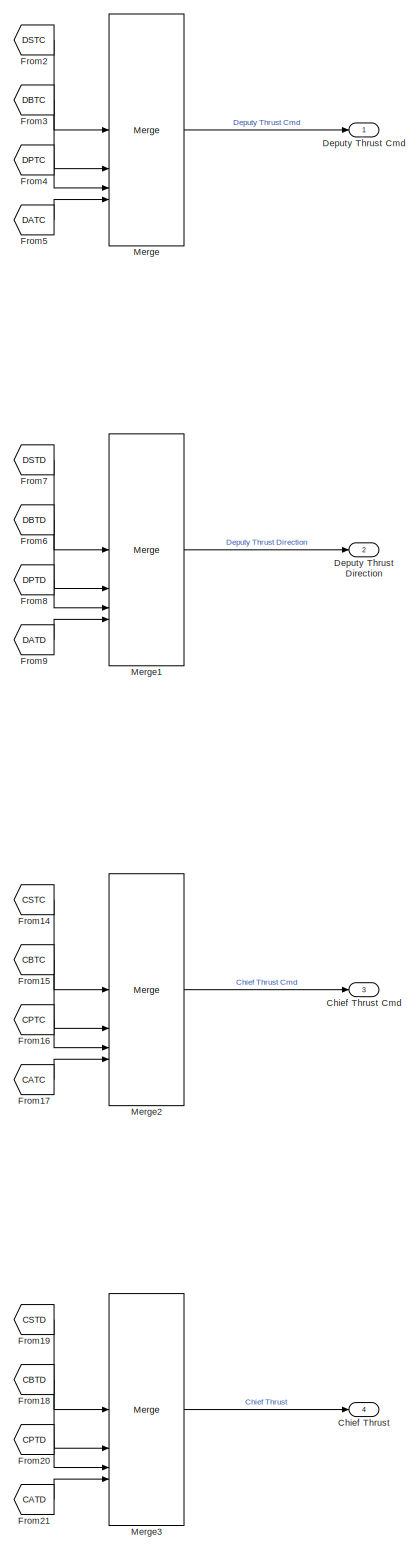
[diagram: root canvas - part 1/4, right side, full height]
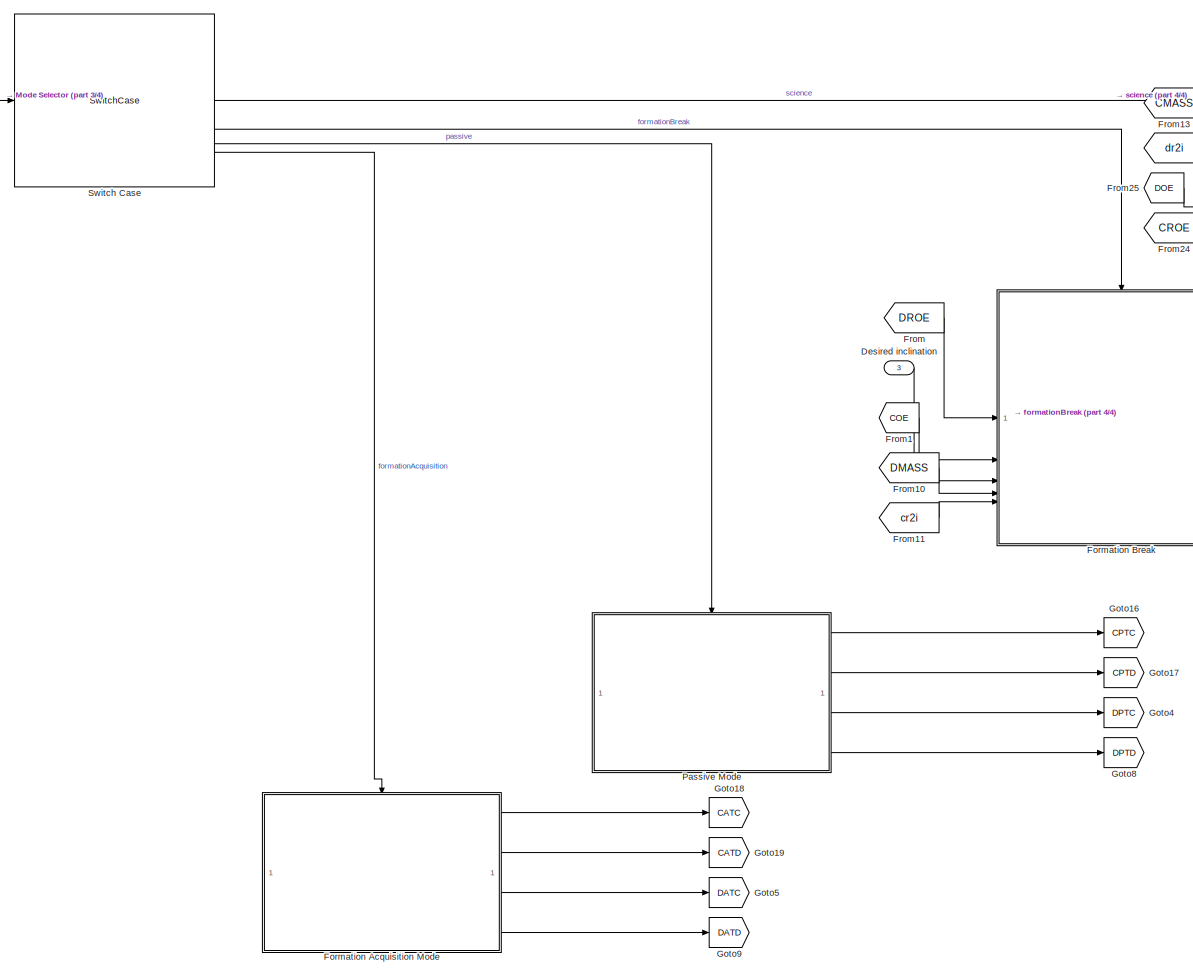
[diagram: root canvas - part 2/4, central region]
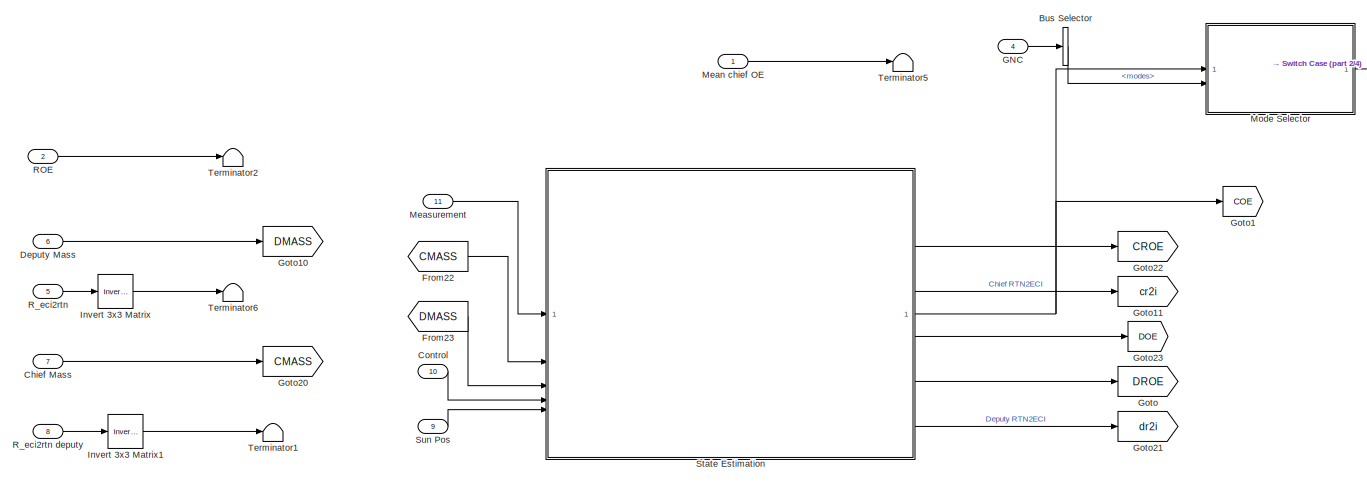
[diagram: root canvas - part 3/4, middle left region]
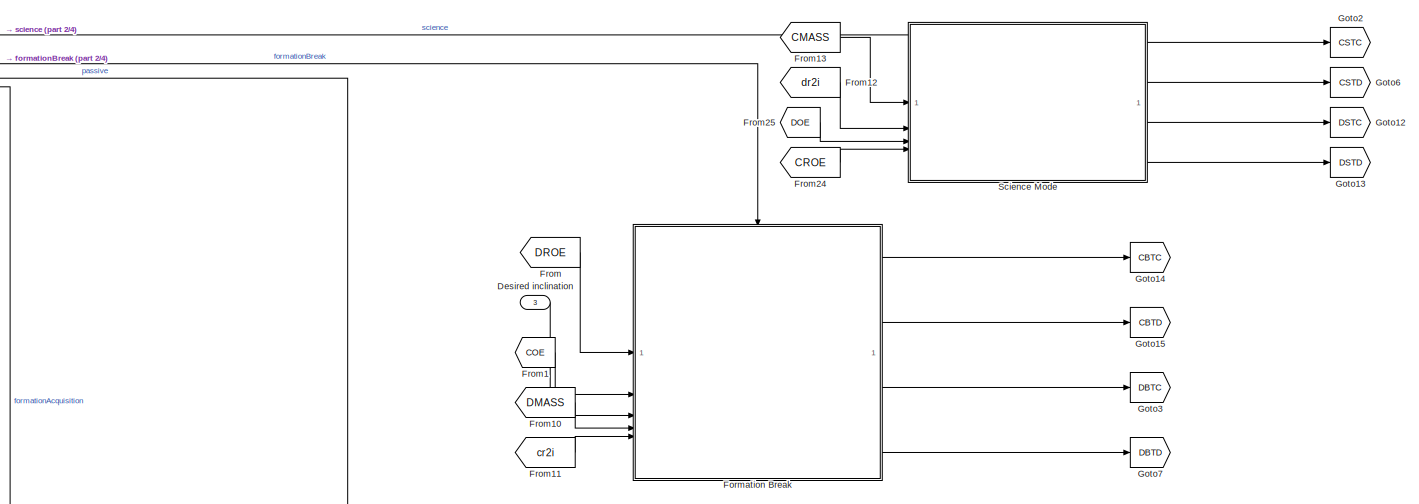
[diagram: root canvas - part 4/4, middle right region]
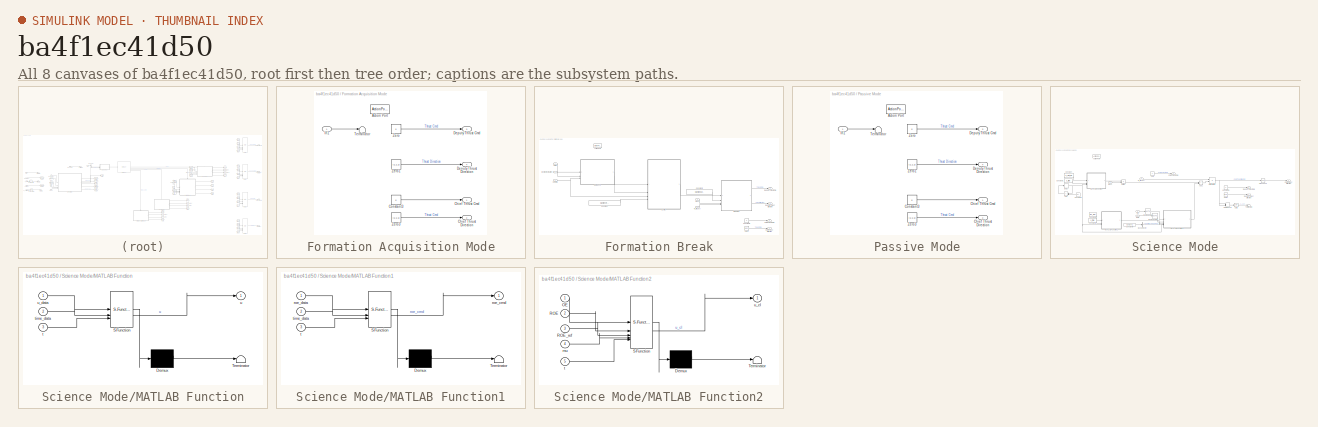
[diagram: thumbnail index - all 8 canvases of the model, root first then tree order]
MODEL slx_ba4f1ec41d50
KIND model
CONFIG AbsTol = auto
CONFIG EnableMultiTasking = off
CONFIG FixedStep = dt
CONFIG MaxStep = auto
CONFIG MinStep = auto
CONFIG RelTol = 1e-3
CONFIG SampleTimeConstraint = Unconstrained
CONFIG SolverName = ode4
CONFIG StartTime = 0.0
CONFIG StopTime = 10.0
BLOCK [BusSelector] Bus Selector
  OutputSignals = modes
BLOCK [Inport] Chief Mass
  Port = 7
BLOCK [Outport] Chief Thrust
  Port = 4
BLOCK [Outport] Chief Thrust Cmd
  Port = 3
BLOCK [Inport] Control
  Port = 10
BLOCK [Inport] Deputy Mass
  Port = 6
BLOCK [Outport] Deputy Thrust Cmd
BLOCK [Outport] Deputy Thrust Direction
  Port = 2
BLOCK [Inport] Desired inclination
  Port = 3
  PortDimensions = 2
BLOCK [SubSystem] Formation Acquisition Mode
  TreatAsAtomicUnit = on
BLOCK [ActionPort] Formation Acquisition Mode/Action Port
  ActionPortLabel = case [ 4 ]:
BLOCK [Outport] Formation Acquisition Mode/Chief Thrust Cmd
BLOCK [Outport] Formation Acquisition Mode/Chief Thrust Direction
  Port = 2
BLOCK [Constant] Formation Acquisition Mode/Constant3
  Value = 0
BLOCK [Outport] Formation Acquisition Mode/Deputy Thrust Cmd
  Port = 3
BLOCK [Outport] Formation Acquisition Mode/Deputy Thrust Direction
  Port = 4
BLOCK [Inport] Formation Acquisition Mode/In1
BLOCK [Terminator] Formation Acquisition Mode/Terminator
BLOCK [Constant] Formation Acquisition Mode/Zero
  OutDataTypeStr = Inherit: Inherit via back propagation
  Value = 0
BLOCK [Constant] Formation Acquisition Mode/Zero1
  OutDataTypeStr = Inherit: Inherit via back propagation
  Value = [1;1;1]
BLOCK [Constant] Formation Acquisition Mode/Zero3
  OutDataTypeStr = Inherit: Inherit via back propagation
  Value = [1;1;1]
BLOCK [SubSystem] Formation Break
  TreatAsAtomicUnit = on
BLOCK [ActionPort] Formation Break/Action Port
  ActionPortLabel = case [ 2 ]:
BLOCK [Outport] Formation Break/Chief Thrust Cmd
BLOCK [Outport] Formation Break/Chief Thrust Direction
  Port = 2
BLOCK [Inport] Formation Break/ChiefOE
  Port = 3
BLOCK [Constant] Formation Break/Constant
  OutDataTypeStr = Bus: earthProperties
  Value = plant.environment.earthProperties
BLOCK [Constant] Formation Break/Constant1
  OutDataTypeStr = Bus: thruster
  Value = plant.deputy.properties.actuators.thruster
BLOCK [Constant] Formation Break/Constant3
  Value = 0
BLOCK [ModelReference] Formation Break/Control
  ModelNameDialog = control.slx
  ModelReferenceVersion = 1.14
BLOCK [Outport] Formation Break/Deputy Thrust Cmd
  Port = 3
BLOCK [Outport] Formation Break/Deputy Thrust Direction
  Port = 4
BLOCK [Inport] Formation Break/Desired inclination
  Port = 2
BLOCK [ModelReference] Formation Break/Guidance
  ModelNameDialog = guidance_formationBreak
  ModelReferenceVersion = 1.56
BLOCK [ModelReference] Formation Break/Mapping
  ModelNameDialog = mapping.slx
  ModelReferenceVersion = 1.29
BLOCK [Inport] Formation Break/Mass
  Port = 4
BLOCK [Inport] Formation Break/ROE
BLOCK [Inport] Formation Break/R_rtn2eci
  Port = 5
BLOCK [Constant] Formation Break/Zero1
  OutDataTypeStr = Inherit: Inherit via back propagation
  Value = [1;1;1]
BLOCK [From] From
  GotoTag = DROE
BLOCK [From] From1
  GotoTag = COE
BLOCK [From] From10
  GotoTag = DMASS
BLOCK [From] From11
  GotoTag = cr2i
BLOCK [From] From12
  GotoTag = dr2i
BLOCK [From] From13
  GotoTag = CMASS
BLOCK [From] From14
  GotoTag = CSTC
BLOCK [From] From15
  GotoTag = CBTC
BLOCK [From] From16
  GotoTag = CPTC
BLOCK [From] From17
  GotoTag = CATC
BLOCK [From] From18
  GotoTag = CBTD
BLOCK [From] From19
  GotoTag = CSTD
BLOCK [From] From2
  GotoTag = DSTC
BLOCK [From] From20
  GotoTag = CPTD
BLOCK [From] From21
  GotoTag = CATD
BLOCK [From] From22
  GotoTag = CMASS
BLOCK [From] From23
  GotoTag = DMASS
BLOCK [From] From24
  GotoTag = CROE
BLOCK [From] From25
  GotoTag = DOE
BLOCK [From] From3
  GotoTag = DBTC
BLOCK [From] From4
  GotoTag = DPTC
BLOCK [From] From5
  GotoTag = DATC
BLOCK [From] From6
  GotoTag = DBTD
BLOCK [From] From7
  GotoTag = DSTD
BLOCK [From] From8
  GotoTag = DPTD
BLOCK [From] From9
  GotoTag = DATD
BLOCK [Inport] GNC
  OutDataTypeStr = Bus: gncBus
  Port = 4
BLOCK [Goto] Goto
  GotoTag = DROE
BLOCK [Goto] Goto1
  GotoTag = COE
BLOCK [Goto] Goto10
  GotoTag = DMASS
BLOCK [Goto] Goto11
  GotoTag = cr2i
BLOCK [Goto] Goto12
  GotoTag = DSTC
BLOCK [Goto] Goto13
  GotoTag = DSTD
BLOCK [Goto] Goto14
  GotoTag = CBTC
BLOCK [Goto] Goto15
  GotoTag = CBTD
BLOCK [Goto] Goto16
  GotoTag = CPTC
BLOCK [Goto] Goto17
  GotoTag = CPTD
BLOCK [Goto] Goto18
  GotoTag = CATC
BLOCK [Goto] Goto19
  GotoTag = CATD
BLOCK [Goto] Goto2
  GotoTag = CSTC
BLOCK [Goto] Goto20
  GotoTag = CMASS
BLOCK [Goto] Goto21
  GotoTag = dr2i
BLOCK [Goto] Goto22
  GotoTag = CROE
BLOCK [Goto] Goto23
  GotoTag = DOE
BLOCK [Goto] Goto3
  GotoTag = DBTC
BLOCK [Goto] Goto4
  GotoTag = DPTC
BLOCK [Goto] Goto5
  GotoTag = DATC
BLOCK [Goto] Goto6
  GotoTag = CSTD
BLOCK [Goto] Goto7
  GotoTag = DBTD
BLOCK [Goto] Goto8
  GotoTag = DPTD
BLOCK [Goto] Goto9
  GotoTag = DATD
BLOCK [Reference] Invert 3x3 Matrix  REF=aerolibutil/Invert 
3x3 Matrix
  SourceBlock = aerolibutil/Invert \n3x3 Matrix
  SourceType = Invert 3x3 Matrix
BLOCK [Reference] Invert 3x3 Matrix1  REF=aerolibutil/Invert 
3x3 Matrix
  SourceBlock = aerolibutil/Invert \n3x3 Matrix
  SourceType = Invert 3x3 Matrix
BLOCK [Inport] Mean chief OE
  OutDataTypeStr = Bus: meanOrbitElements
BLOCK [Inport] Measurement
  Port = 11
BLOCK [Merge] Merge
  InitialOutput = 0
  Inputs = 4
BLOCK [Merge] Merge1
  InitialOutput = [1,1,1]
  Inputs = 4
BLOCK [Merge] Merge2
  InitialOutput = 0
  Inputs = 4
BLOCK [Merge] Merge3
  InitialOutput = [1,1,1]
  Inputs = 4
BLOCK [ModelReference] Mode Selector
  ModelNameDialog = modeSelector.slx
  ModelReferenceVersion = 1.18
  PortSchema = {"entries":[{"content":{"sides":[{"content":{"connectorIds":["In2","In1"]},"type":"ConnectorPlacement.EquallySpacedRectSide","uuid":"8a45dd05-9625-4267-a143-38565687985f"},{"content":{"connectorIds":["Out1"],"side":"RIGHT"},"type":"ConnectorPlacement.EquallySpacedRectSide","uuid":"c16609dd-c717-4d96-a97d-40d34aa61c5b"},{"content":{"side":"TOP"},"type":"ConnectorPlacement.EquallySpacedRectSide","uu...<+228ch>
BLOCK [SubSystem] Passive Mode
  TreatAsAtomicUnit = on
BLOCK [ActionPort] Passive Mode/Action Port
  ActionPortLabel = case [ 3 ]:
BLOCK [Outport] Passive Mode/Chief Thrust Cmd
BLOCK [Outport] Passive Mode/Chief Thrust Direction
  Port = 2
BLOCK [Constant] Passive Mode/Constant3
  Value = 0
BLOCK [Outport] Passive Mode/Deputy Thrust Cmd
  Port = 3
BLOCK [Outport] Passive Mode/Deputy Thrust Direction
  Port = 4
BLOCK [Inport] Passive Mode/In1
BLOCK [Terminator] Passive Mode/Terminator
BLOCK [Constant] Passive Mode/Zero
  OutDataTypeStr = Inherit: Inherit via back propagation
  Value = 0
BLOCK [Constant] Passive Mode/Zero1
  OutDataTypeStr = Inherit: Inherit via back propagation
  Value = [1;1;1]
BLOCK [Constant] Passive Mode/Zero3
  OutDataTypeStr = Inherit: Inherit via back propagation
  Value = [1;1;1]
BLOCK [Inport] ROE
  OutDataTypeStr = Bus: eccentricSingularROE
  Port = 2
BLOCK [Inport] R_eci2rtn
  Port = 5
  PortDimensions = [3,3]
BLOCK [Inport] R_eci2rtn deputy
  Port = 8
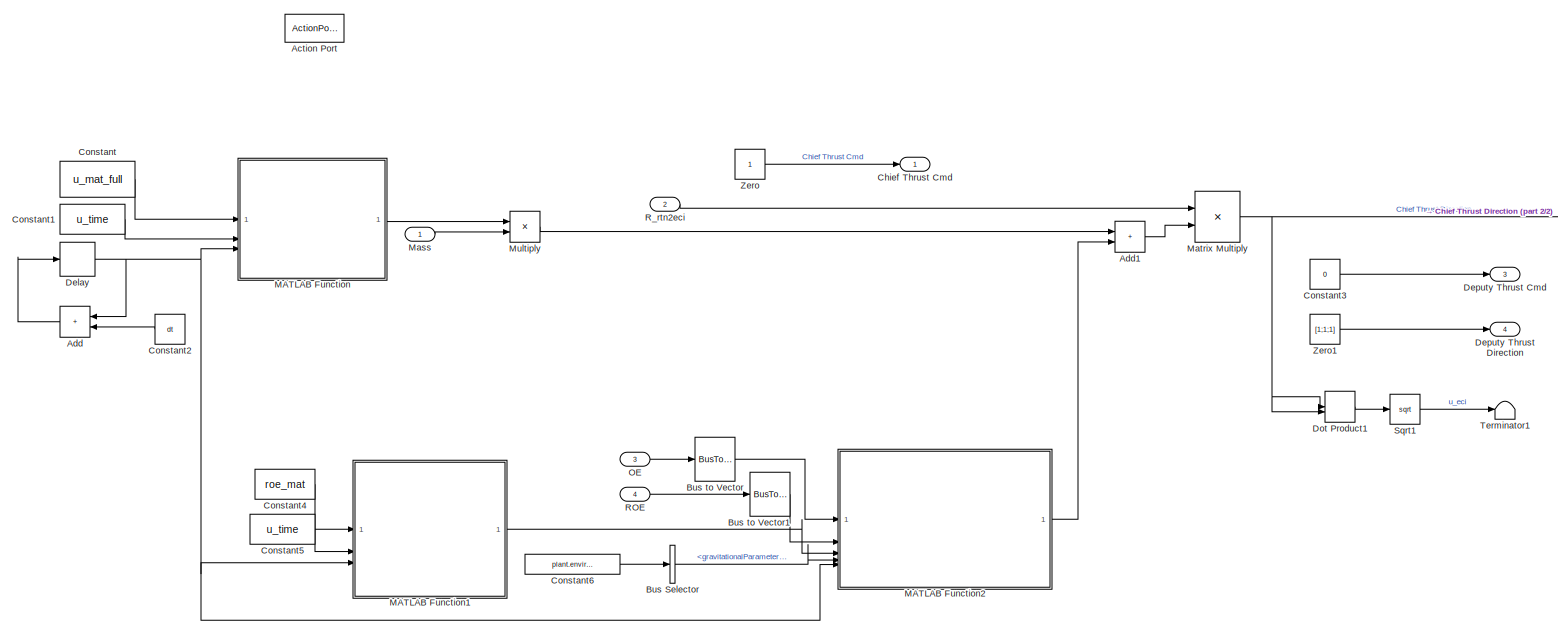
[diagram: Science Mode - part 1/2, most of the canvas]
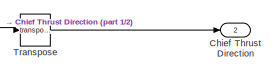
[diagram: Science Mode - part 2/2, middle right region]
BLOCK [SubSystem] Science Mode
  TreatAsAtomicUnit = on
BLOCK [ActionPort] Science Mode/Action Port
  ActionPortLabel = case [ 1 ]:
BLOCK [Sum] Science Mode/Add
  IconShape = rectangular
BLOCK [Sum] Science Mode/Add1
  IconShape = rectangular
BLOCK [BusSelector] Science Mode/Bus Selector
  OutputSignals = earthProperties.gravitationalParameter_m3_s2
BLOCK [BusToVector] Science Mode/Bus to Vector
BLOCK [BusToVector] Science Mode/Bus to Vector1
BLOCK [Outport] Science Mode/Chief Thrust Cmd
BLOCK [Outport] Science Mode/Chief Thrust Direction
  Port = 2
BLOCK [Constant] Science Mode/Constant
  Value = u_mat_full
BLOCK [Constant] Science Mode/Constant1
  Value = u_time
BLOCK [Constant] Science Mode/Constant2
  Value = dt
BLOCK [Constant] Science Mode/Constant3
  Value = 0
BLOCK [Constant] Science Mode/Constant4
  Value = roe_mat
BLOCK [Constant] Science Mode/Constant5
  Value = u_time
BLOCK [Constant] Science Mode/Constant6
  OutDataTypeStr = Bus: environment
  Value = plant.environment
BLOCK [Delay] Science Mode/Delay
  DelayLength = 1
  InputPortMap = u0
BLOCK [Outport] Science Mode/Deputy Thrust Cmd
  Port = 3
BLOCK [Outport] Science Mode/Deputy Thrust Direction
  Port = 4
BLOCK [DotProduct] Science Mode/Dot Product1
  OutDataTypeStr = Inherit: Inherit via internal rule
BLOCK [SubSystem] Science Mode/MATLAB Function
  ErrorFcn = Stateflow.Translate.translate
  LibrarySourceBlock = simulink/User-Defined\nFunctions/MATLAB Function
  PermitHierarchicalResolution = ExplicitOnly
  SFBlockType = MATLAB Function
  TreatAsAtomicUnit = on
BLOCK [Demux] Science Mode/MATLAB Function/ Demux 
  Outputs = 1
BLOCK [S-Function] Science Mode/MATLAB Function/ SFunction 
  EnableBusSupport = on
  FunctionName = sf_sfun
  PortCounts = [3 2]
  SFcnIsStateOwnerBlock = off
  SFunctionDeploymentMode = off
  Tag = Stateflow S-Function 2
BLOCK [Terminator] Science Mode/MATLAB Function/ Terminator 
BLOCK [Inport] Science Mode/MATLAB Function/t
  Port = 3
BLOCK [Inport] Science Mode/MATLAB Function/time_data
  Port = 2
BLOCK [Outport] Science Mode/MATLAB Function/u
BLOCK [Inport] Science Mode/MATLAB Function/u_data
BLOCK [SubSystem] Science Mode/MATLAB Function1
  ErrorFcn = Stateflow.Translate.translate
  LibrarySourceBlock = simulink/User-Defined\nFunctions/MATLAB Function
  PermitHierarchicalResolution = ExplicitOnly
  SFBlockType = MATLAB Function
  TreatAsAtomicUnit = on
BLOCK [Demux] Science Mode/MATLAB Function1/ Demux 
  Outputs = 1
BLOCK [S-Function] Science Mode/MATLAB Function1/ SFunction 
  EnableBusSupport = on
  FunctionName = sf_sfun
  PortCounts = [3 2]
  SFcnIsStateOwnerBlock = off
  SFunctionDeploymentMode = off
  Tag = Stateflow S-Function 1
BLOCK [Terminator] Science Mode/MATLAB Function1/ Terminator 
BLOCK [Outport] Science Mode/MATLAB Function1/roe_cmd
BLOCK [Inport] Science Mode/MATLAB Function1/roe_data
BLOCK [Inport] Science Mode/MATLAB Function1/t
  Port = 3
BLOCK [Inport] Science Mode/MATLAB Function1/time_data
  Port = 2
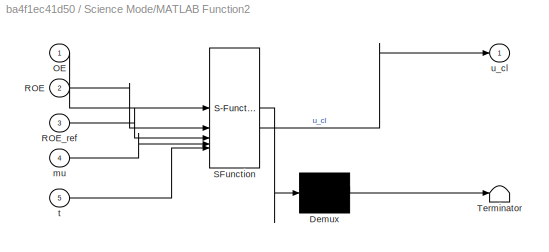
BLOCK [SubSystem] Science Mode/MATLAB Function2
  ErrorFcn = Stateflow.Translate.translate
  LibrarySourceBlock = simulink/User-Defined\nFunctions/MATLAB Function
  PermitHierarchicalResolution = ExplicitOnly
  SFBlockType = MATLAB Function
  TreatAsAtomicUnit = on
BLOCK [Demux] Science Mode/MATLAB Function2/ Demux 
  Outputs = 1
BLOCK [S-Function] Science Mode/MATLAB Function2/ SFunction 
  EnableBusSupport = on
  FunctionName = sf_sfun
  PortCounts = [5 2]
  SFcnIsStateOwnerBlock = off
  SFunctionDeploymentMode = off
  Tag = Stateflow S-Function 3
BLOCK [Terminator] Science Mode/MATLAB Function2/ Terminator 
BLOCK [Inport] Science Mode/MATLAB Function2/OE
BLOCK [Inport] Science Mode/MATLAB Function2/ROE
  Port = 2
BLOCK [Inport] Science Mode/MATLAB Function2/ROE_ref
  Port = 3
BLOCK [Inport] Science Mode/MATLAB Function2/mu
  Port = 4
BLOCK [Inport] Science Mode/MATLAB Function2/t
  Port = 5
BLOCK [Outport] Science Mode/MATLAB Function2/u_cl
BLOCK [Inport] Science Mode/Mass
BLOCK [Product] Science Mode/Matrix Multiply
  Multiplication = Matrix(*)
BLOCK [Product] Science Mode/Multiply
  Inputs = **
BLOCK [Inport] Science Mode/OE
  OutDataTypeStr = Bus: osculatingOrbitElements
  Port = 3
BLOCK [Inport] Science Mode/ROE
  OutDataTypeStr = Bus: eccentricSingularROE
  Port = 4
BLOCK [Inport] Science Mode/R_rtn2eci
  Port = 2
BLOCK [Sqrt] Science Mode/Sqrt1
BLOCK [Terminator] Science Mode/Terminator1
BLOCK [Math] Science Mode/Transpose
  Operator = transpose
BLOCK [Constant] Science Mode/Zero
  OutDataTypeStr = Inherit: Inherit via back propagation
BLOCK [Constant] Science Mode/Zero1
  OutDataTypeStr = Inherit: Inherit via back propagation
  Value = [1;1;1]
BLOCK [ModelReference] State Estimation
  ModelNameDialog = estimation.slx
  ModelReferenceVersion = 1.37
BLOCK [Inport] Sun Pos
  Port = 9
BLOCK [SwitchCase] Switch Case
  CaseConditions = {1,2,3,4}
  ShowDefaultCase = off
BLOCK [Terminator] Terminator1
BLOCK [Terminator] Terminator2
BLOCK [Terminator] Terminator5
BLOCK [Terminator] Terminator6
LINE Bus Selector:1 -> Mode Selector:2
LINE Chief Mass:1 -> Goto20:1
LINE Control:1 -> State Estimation:4
LINE Deputy Mass:1 -> Goto10:1
LINE Desired inclination:1 -> Formation Break:2
LINE Formation Acquisition Mode/Constant3:1 -> Formation Acquisition Mode/Chief Thrust Cmd:1
LINE Formation Acquisition Mode/In1:1 -> Formation Acquisition Mode/Terminator:1
LINE Formation Acquisition Mode/Zero1:1 -> Formation Acquisition Mode/Deputy Thrust Direction:1
LINE Formation Acquisition Mode/Zero3:1 -> Formation Acquisition Mode/Chief Thrust Direction:1
LINE Formation Acquisition Mode/Zero:1 -> Formation Acquisition Mode/Deputy Thrust Cmd:1
LINE Formation Acquisition Mode:1 -> Goto18:1
LINE Formation Acquisition Mode:2 -> Goto19:1
LINE Formation Acquisition Mode:3 -> Goto5:1
LINE Formation Acquisition Mode:4 -> Goto9:1
NET Formation Break/ChiefOE:1 -> Formation Break/Control:3, Formation Break/Guidance:3
LINE Formation Break/Constant1:1 -> Formation Break/Mapping:2
LINE Formation Break/Constant3:1 -> Formation Break/Chief Thrust Cmd:1
LINE Formation Break/Constant:1 -> Formation Break/Control:4
LINE Formation Break/Control:1 -> Formation Break/Mapping:1
LINE Formation Break/Desired inclination:1 -> Formation Break/Guidance:2
LINE Formation Break/Guidance:1 -> Formation Break/Control:1
LINE Formation Break/Guidance:2 -> Formation Break/Control:2
LINE Formation Break/Mapping:1 -> Formation Break/Deputy Thrust Cmd:1
LINE Formation Break/Mapping:2 -> Formation Break/Deputy Thrust Direction:1
LINE Formation Break/Mass:1 -> Formation Break/Mapping:3
LINE Formation Break/ROE:1 -> Formation Break/Guidance:1
LINE Formation Break/R_rtn2eci:1 -> Formation Break/Mapping:4
LINE Formation Break/Zero1:1 -> Formation Break/Chief Thrust Direction:1
LINE Formation Break:1 -> Goto14:1
LINE Formation Break:2 -> Goto15:1
LINE Formation Break:3 -> Goto3:1
LINE Formation Break:4 -> Goto7:1
LINE From10:1 -> Formation Break:4
LINE From11:1 -> Formation Break:5
LINE From12:1 -> Science Mode:2
LINE From13:1 -> Science Mode:1
LINE From14:1 -> Merge2:1
LINE From15:1 -> Merge2:2
LINE From16:1 -> Merge2:3
LINE From17:1 -> Merge2:4
LINE From18:1 -> Merge3:2
LINE From19:1 -> Merge3:1
LINE From1:1 -> Formation Break:3
LINE From20:1 -> Merge3:3
LINE From21:1 -> Merge3:4
LINE From22:1 -> State Estimation:2
LINE From23:1 -> State Estimation:3
LINE From24:1 -> Science Mode:4
LINE From25:1 -> Science Mode:3
LINE From2:1 -> Merge:1
LINE From3:1 -> Merge:2
LINE From4:1 -> Merge:3
LINE From5:1 -> Merge:4
LINE From6:1 -> Merge1:2
LINE From7:1 -> Merge1:1
LINE From8:1 -> Merge1:3
LINE From9:1 -> Merge1:4
LINE From:1 -> Formation Break:1
LINE GNC:1 -> Bus Selector:1
LINE Invert 3x3 Matrix1:1 -> Terminator1:1
LINE Invert 3x3 Matrix:1 -> Terminator6:1
LINE Mean chief OE:1 -> Terminator5:1
LINE Measurement:1 -> State Estimation:1
LINE Merge1:1 -> Deputy Thrust Direction:1
LINE Merge2:1 -> Chief Thrust Cmd:1
LINE Merge3:1 -> Chief Thrust:1
LINE Merge:1 -> Deputy Thrust Cmd:1
LINE Mode Selector:1 -> Switch Case:1
LINE Passive Mode/Constant3:1 -> Passive Mode/Chief Thrust Cmd:1
LINE Passive Mode/In1:1 -> Passive Mode/Terminator:1
LINE Passive Mode/Zero1:1 -> Passive Mode/Deputy Thrust Direction:1
LINE Passive Mode/Zero3:1 -> Passive Mode/Chief Thrust Direction:1
LINE Passive Mode/Zero:1 -> Passive Mode/Deputy Thrust Cmd:1
LINE Passive Mode:1 -> Goto16:1
LINE Passive Mode:2 -> Goto17:1
LINE Passive Mode:3 -> Goto4:1
LINE Passive Mode:4 -> Goto8:1
LINE ROE:1 -> Terminator2:1
LINE R_eci2rtn deputy:1 -> Invert 3x3 Matrix1:1
LINE R_eci2rtn:1 -> Invert 3x3 Matrix:1
LINE Science Mode/Add1:1 -> Science Mode/Matrix Multiply:2
LINE Science Mode/Add:1 -> Science Mode/Delay:1
LINE Science Mode/Bus Selector:1 -> Science Mode/MATLAB Function2:4
LINE Science Mode/Bus to Vector1:1 -> Science Mode/MATLAB Function2:2
LINE Science Mode/Bus to Vector:1 -> Science Mode/MATLAB Function2:1
LINE Science Mode/Constant1:1 -> Science Mode/MATLAB Function:2
LINE Science Mode/Constant2:1 -> Science Mode/Add:2
LINE Science Mode/Constant3:1 -> Science Mode/Deputy Thrust Cmd:1
LINE Science Mode/Constant4:1 -> Science Mode/MATLAB Function1:1
LINE Science Mode/Constant5:1 -> Science Mode/MATLAB Function1:2
LINE Science Mode/Constant6:1 -> Science Mode/Bus Selector:1
LINE Science Mode/Constant:1 -> Science Mode/MATLAB Function:1
NET Science Mode/Delay:1 -> Science Mode/Add:1, Science Mode/MATLAB Function1:3, Science Mode/MATLAB Function2:5, Science Mode/MATLAB Function:3
LINE Science Mode/Dot Product1:1 -> Science Mode/Sqrt1:1
LINE Science Mode/MATLAB Function1:1 -> Science Mode/MATLAB Function2:3
LINE Science Mode/MATLAB Function2:1 -> Science Mode/Add1:2
LINE Science Mode/MATLAB Function:1 -> Science Mode/Multiply:1
LINE Science Mode/Mass:1 -> Science Mode/Multiply:2
NET Science Mode/Matrix Multiply:1 -> Science Mode/Dot Product1:1, Science Mode/Dot Product1:2, Science Mode/Transpose:1
LINE Science Mode/Multiply:1 -> Science Mode/Add1:1
LINE Science Mode/OE:1 -> Science Mode/Bus to Vector:1
LINE Science Mode/ROE:1 -> Science Mode/Bus to Vector1:1
LINE Science Mode/R_rtn2eci:1 -> Science Mode/Matrix Multiply:1
LINE Science Mode/Sqrt1:1 -> Science Mode/Terminator1:1
LINE Science Mode/Transpose:1 -> Science Mode/Chief Thrust Direction:1
LINE Science Mode/Zero1:1 -> Science Mode/Deputy Thrust Direction:1
LINE Science Mode/Zero:1 -> Science Mode/Chief Thrust Cmd:1
LINE Science Mode:1 -> Goto2:1
LINE Science Mode:2 -> Goto6:1
LINE Science Mode:3 -> Goto12:1
LINE Science Mode:4 -> Goto13:1
NET State Estimation:1 -> Goto1:1, Mode Selector:1
LINE State Estimation:2 -> Goto22:1
LINE State Estimation:3 -> Goto11:1
LINE State Estimation:4 -> Goto23:1
LINE State Estimation:5 -> Goto:1
LINE State Estimation:6 -> Goto21:1
LINE Sun Pos:1 -> State Estimation:5
LINE Switch Case:1 -> Science Mode:ifaction
LINE Switch Case:2 -> Formation Break:ifaction
LINE Switch Case:3 -> Passive Mode:ifaction
LINE Switch Case:4 -> Formation Acquisition Mode:ifaction
note: NET lines group one-source signal fan-out (src -> all destinations, sorted); 1:1 wires keep LINE
CHART Science Mode/MATLAB Function1 states=1 transitions=1
  STATE_LABEL 'eML_blk_kernel()'
  STATE_LABEL 'SCRIPT:\nfunction roe_cmd = getROECmd(roe_data,time_data,t)\n\nroe_cmd = getROECmd(roe_data,time_data,t);\n\nend'
CHART Science Mode/MATLAB Function states=1 transitions=1
  STATE_LABEL 'eML_blk_kernel()'
  STATE_LABEL 'SCRIPT:\nfunction u = getControlCmd(u_data,time_data,t)\nu = getControlCmd(u_data,time_data,t);\nend\n'
CHART Science Mode/MATLAB Function2 states=1 transitions=1
  STATE_LABEL 'eML_blk_kernel()'
  STATE_LABEL 'SCRIPT:\nfunction u_cl = getClosedLoopCmd(OE,ROE,ROE_ref,mu,t)\n\nif t > 900 && t < 19080\n    u_cl = getClosedLoopCmd(OE,ROE,ROE_ref,mu);\nelse\n    u_cl = [0;0;0];\n\nend\n\n'
CHART  states=0 transitions=0
CHART  states=0 transitions=0
CHART  states=0 transitions=0
